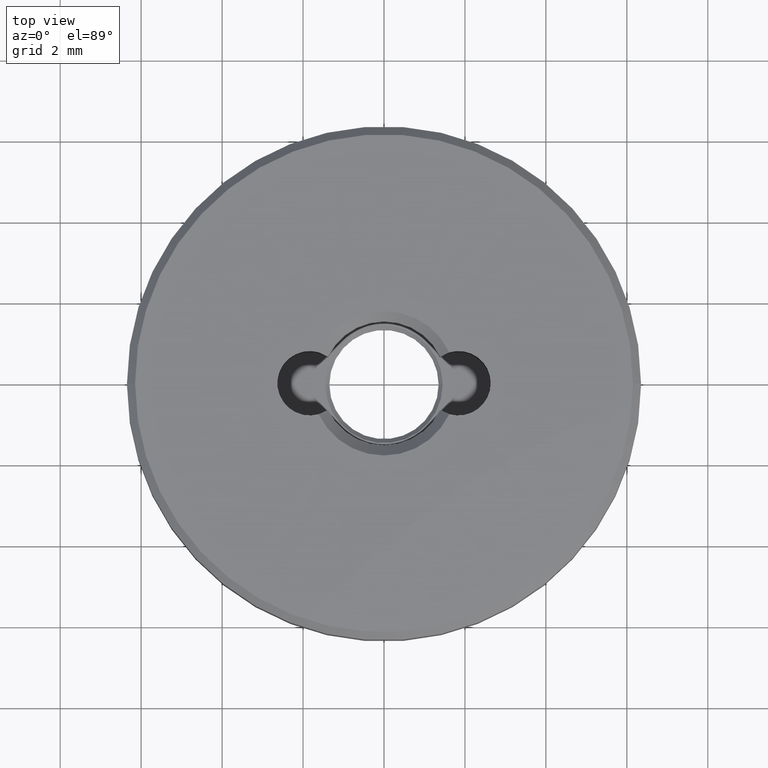
[diagram: clean part render]
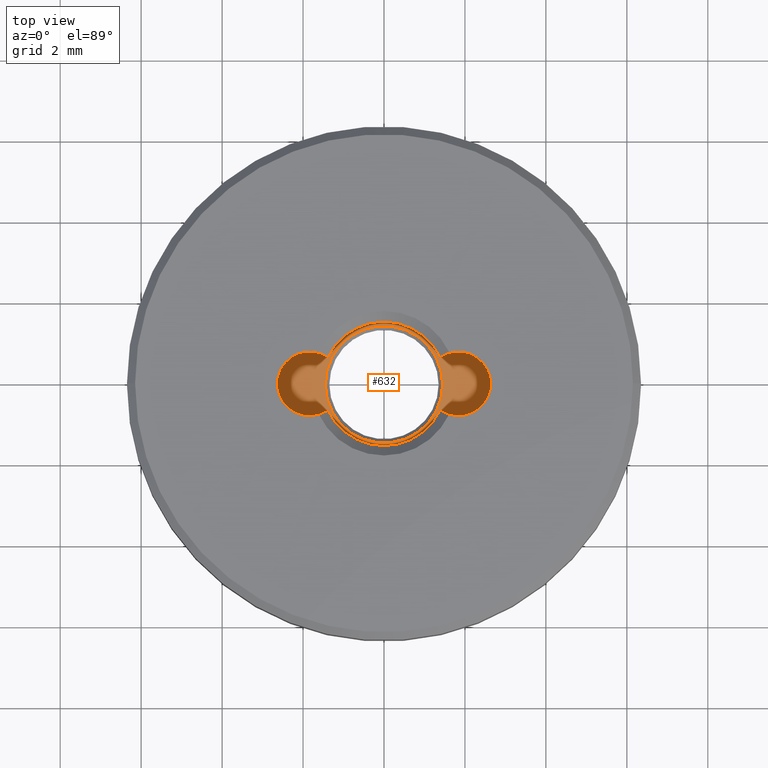
[diagram: same view with one face highlighted and labeled with its STEP entity id]
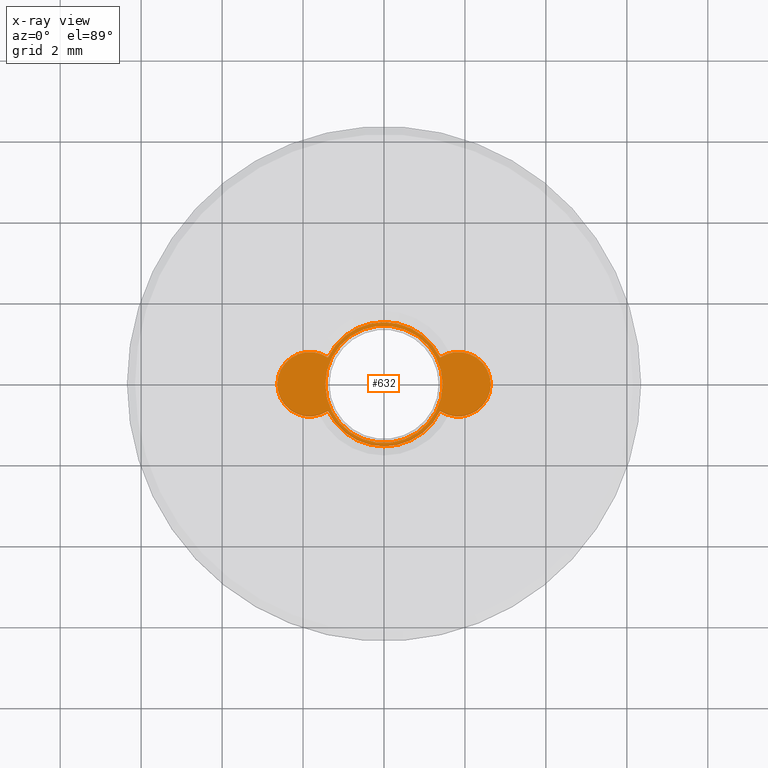
[diagram: x-ray of the same camera — body ghosted, the highlighted face saturated]
A machine part, top view. The second image highlights one B-rep face of the part: STEP entity #632.
The next image is the same camera in x-ray: the body ghosted, the highlighted face saturated — about 0% of this face is hidden behind the body in this view.
In plain terms, the highlighted planar face has unit normal (0, 0, 1).
Its self-contained STEP definition (entity closure, byte-faithful):
#3 = VERTEX_POINT ( 'NONE', #302 ) ;
#12 = CARTESIAN_POINT ( 'NONE',  ( 0.000000000000000000, 0.000000000000000000, 0.6000000000000000888 ) ) ;
#19 = CARTESIAN_POINT ( 'NONE',  ( 1.834999999999999742, 2.247226876435391980E-16, 0.6000000000000003109 ) ) ;
#26 = EDGE_CURVE ( 'NONE', #424, #228, #70, .T. ) ;
#28 = CARTESIAN_POINT ( 'NONE',  ( 0.000000000000000000, 0.000000000000000000, 0.6000000000000000888 ) ) ;
#43 = AXIS2_PLACEMENT_3D ( 'NONE', #633, #366, #577 ) ;
#54 = EDGE_CURVE ( 'NONE', #443, #3, #622, .T. ) ;
#55 = DIRECTION ( 'NONE',  ( 0.000000000000000000, 0.000000000000000000, 1.000000000000000000 ) ) ;
#56 = AXIS2_PLACEMENT_3D ( 'NONE', #625, #349, #682 ) ;
#57 = AXIS2_PLACEMENT_3D ( 'NONE', #470, #146, #529 ) ;
#70 = CIRCLE ( 'NONE', #56, 1.450000000000001732 ) ;
#75 = DIRECTION ( 'NONE',  ( 1.000000000000000000, 0.000000000000000000, 0.000000000000000000 ) ) ;
#97 = FACE_BOUND ( 'NONE', #629, .T. ) ;
#139 = ORIENTED_EDGE ( 'NONE', *, *, #559, .T. ) ;
#146 = DIRECTION ( 'NONE',  ( 0.000000000000000000, 0.000000000000000000, 1.000000000000000000 ) ) ;
#151 = ORIENTED_EDGE ( 'NONE', *, *, #451, .F. ) ;
#156 = ORIENTED_EDGE ( 'NONE', *, *, #363, .T. ) ;
#157 = EDGE_CURVE ( 'NONE', #658, #3, #636, .T. ) ;
#164 = EDGE_CURVE ( 'NONE', #651, #443, #335, .T. ) ;
#184 = DIRECTION ( 'NONE',  ( 1.000000000000000000, 0.000000000000000000, 0.000000000000000000 ) ) ;
#188 = AXIS2_PLACEMENT_3D ( 'NONE', #12, #55, #230 ) ;
#215 = ORIENTED_EDGE ( 'NONE', *, *, #164, .F. ) ;
#228 = VERTEX_POINT ( 'NONE', #638 ) ;
#230 = DIRECTION ( 'NONE',  ( 1.000000000000000000, 0.000000000000000000, 0.000000000000000000 ) ) ;
#233 = ORIENTED_EDGE ( 'NONE', *, *, #26, .T. ) ;
#238 = DIRECTION ( 'NONE',  ( -0.000000000000000000, -0.000000000000000000, -1.000000000000000000 ) ) ;
#240 = DIRECTION ( 'NONE',  ( -0.000000000000000000, -0.000000000000000000, -1.000000000000000000 ) ) ;
#246 = CARTESIAN_POINT ( 'NONE',  ( -1.834999999999999742, -2.247226876435391980E-16, 0.6000000000000003109 ) ) ;
#286 = ORIENTED_EDGE ( 'NONE', *, *, #157, .T. ) ;
#302 = CARTESIAN_POINT ( 'NONE',  ( 1.385136239782015943, -0.6615304960790072686, 0.6000000000000003109 ) ) ;
#308 = DIRECTION ( 'NONE',  ( 1.000000000000000000, 0.000000000000000000, 0.000000000000000000 ) ) ;
#335 = CIRCLE ( 'NONE', #650, 0.8000000000000008216 ) ;
#338 = CARTESIAN_POINT ( 'NONE',  ( 1.450000000000001732, 0.000000000000000000, 0.6000000000000000888 ) ) ;
#339 = EDGE_LOOP ( 'NONE', ( #286, #497, #215, #156, #151 ) ) ;
#349 = DIRECTION ( 'NONE',  ( -0.000000000000000000, -0.000000000000000000, -1.000000000000000000 ) ) ;
#355 = DIRECTION ( 'NONE',  ( -0.000000000000000000, -0.000000000000000000, -1.000000000000000000 ) ) ;
#363 = EDGE_CURVE ( 'NONE', #651, #641, #672, .T. ) ;
#365 = CARTESIAN_POINT ( 'NONE',  ( 1.385136239782015943, 0.6615304960790077127, 0.6000000000000003109 ) ) ;
#366 = DIRECTION ( 'NONE',  ( 0.000000000000000000, 0.000000000000000000, 1.000000000000000000 ) ) ;
#370 = DIRECTION ( 'NONE',  ( -0.000000000000000000, -0.000000000000000000, -1.000000000000000000 ) ) ;
#424 = VERTEX_POINT ( 'NONE', #338 ) ;
#440 = CIRCLE ( 'NONE', #512, 1.450000000000001732 ) ;
#443 = VERTEX_POINT ( 'NONE', #501 ) ;
#451 = EDGE_CURVE ( 'NONE', #658, #641, #499, .T. ) ;
#470 = CARTESIAN_POINT ( 'NONE',  ( 0.000000000000000000, 0.000000000000000000, 0.6000000000000000888 ) ) ;
#497 = ORIENTED_EDGE ( 'NONE', *, *, #54, .F. ) ;
#499 = CIRCLE ( 'NONE', #546, 0.8000000000000008216 ) ;
#501 = CARTESIAN_POINT ( 'NONE',  ( 2.635000000000001119, 2.247226876435391980E-16, 0.6000000000000003109 ) ) ;
#512 = AXIS2_PLACEMENT_3D ( 'NONE', #28, #240, #184 ) ;
#529 = DIRECTION ( 'NONE',  ( 1.000000000000000000, 0.000000000000000000, -0.000000000000000000 ) ) ;
#537 = FACE_OUTER_BOUND ( 'NONE', #339, .T. ) ;
#546 = AXIS2_PLACEMENT_3D ( 'NONE', #246, #238, #75 ) ;
#559 = EDGE_CURVE ( 'NONE', #228, #424, #440, .T. ) ;
#577 = DIRECTION ( 'NONE',  ( 1.000000000000000000, 0.000000000000000000, 0.000000000000000000 ) ) ;
#584 = CARTESIAN_POINT ( 'NONE',  ( -1.385136239782015943, 0.6615304960790072686, 0.6000000000000003109 ) ) ;
#622 = CIRCLE ( 'NONE', #694, 0.8000000000000008216 ) ;
#625 = CARTESIAN_POINT ( 'NONE',  ( 0.000000000000000000, 0.000000000000000000, 0.6000000000000000888 ) ) ;
#629 = EDGE_LOOP ( 'NONE', ( #233, #139 ) ) ;
#631 = PLANE ( 'NONE',  #57 ) ;
#632 = ADVANCED_FACE ( 'NONE', ( #97, #537 ), #631, .T. ) ;
#633 = CARTESIAN_POINT ( 'NONE',  ( 0.000000000000000000, 0.000000000000000000, 0.6000000000000000888 ) ) ;
#635 = CARTESIAN_POINT ( 'NONE',  ( -1.385136239782015943, -0.6615304960790077127, 0.6000000000000003109 ) ) ;
#636 = CIRCLE ( 'NONE', #43, 1.534999999999999920 ) ;
#638 = CARTESIAN_POINT ( 'NONE',  ( -1.450000000000001732, 1.775737858763664135E-16, 0.6000000000000000888 ) ) ;
#641 = VERTEX_POINT ( 'NONE', #584 ) ;
#650 = AXIS2_PLACEMENT_3D ( 'NONE', #686, #370, #691 ) ;
#651 = VERTEX_POINT ( 'NONE', #365 ) ;
#658 = VERTEX_POINT ( 'NONE', #635 ) ;
#672 = CIRCLE ( 'NONE', #188, 1.534999999999999920 ) ;
#682 = DIRECTION ( 'NONE',  ( 1.000000000000000000, 0.000000000000000000, 0.000000000000000000 ) ) ;
#686 = CARTESIAN_POINT ( 'NONE',  ( 1.834999999999999742, 2.247226876435391980E-16, 0.6000000000000003109 ) ) ;
#691 = DIRECTION ( 'NONE',  ( 1.000000000000000000, 0.000000000000000000, 0.000000000000000000 ) ) ;
#694 = AXIS2_PLACEMENT_3D ( 'NONE', #19, #355, #308 ) ;